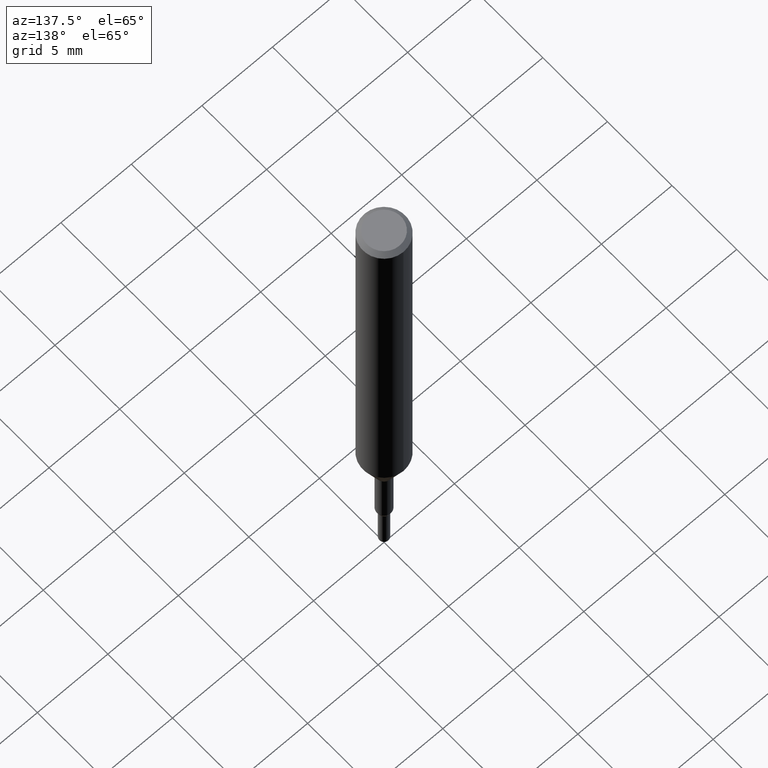
[diagram: clean part render]
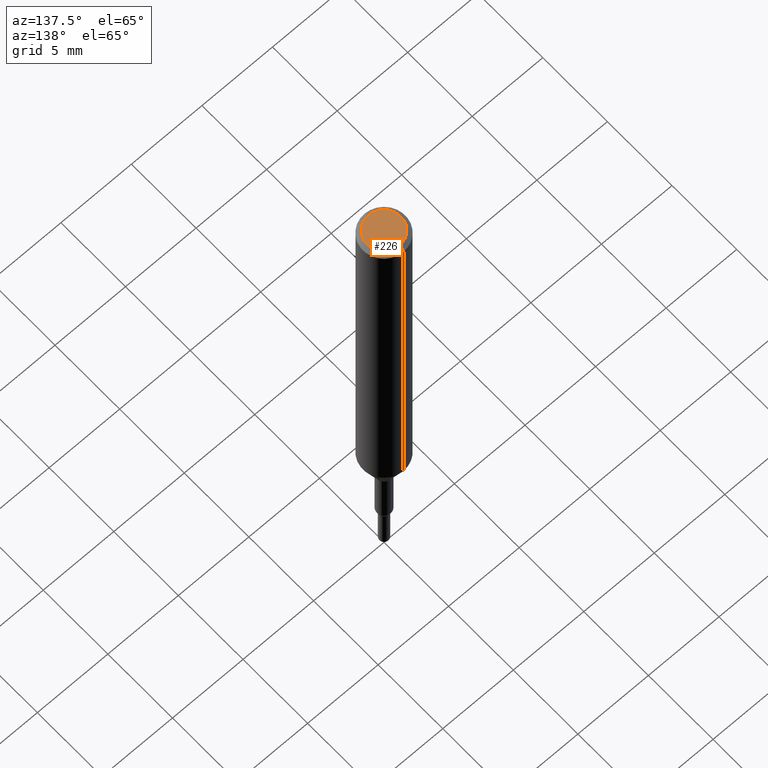
[diagram: same view with one face highlighted and labeled with its STEP entity id]
A machine part, auxiliary view. The second image highlights one B-rep face of the part: STEP entity #226.
In plain terms, the highlighted planar face has unit normal (-0, 0, 1).
Its self-contained STEP definition (entity closure, byte-faithful):
#122=VERTEX_POINT('',#300);
#150=VERTEX_POINT('',#331);
#152=EDGE_CURVE('',#122,#150,#333,.T.);
#186=EDGE_CURVE('',#150,#122,#371,.T.);
#226=ADVANCED_FACE('',(#417),#418,.T.);
#300=CARTESIAN_POINT('',(1.46952762458685E-016,-1.2,0.0));
#331=CARTESIAN_POINT('',(0.0,1.2,0.0));
#333=CIRCLE('',#536,1.2);
#371=CIRCLE('',#588,1.2);
#417=FACE_OUTER_BOUND('',#646,.T.);
#418=PLANE('',#647);
#536=AXIS2_PLACEMENT_3D('',#752,#753,#754);
#588=AXIS2_PLACEMENT_3D('',#811,#812,#813);
#646=EDGE_LOOP('',(#875,#876));
#647=AXIS2_PLACEMENT_3D('',#877,#878,#879);
#752=CARTESIAN_POINT('',(0.0,0.0,0.0));
#753=DIRECTION('',(0.0,0.0,-1.0));
#754=DIRECTION('',(0.0,1.0,0.0));
#811=CARTESIAN_POINT('',(0.0,0.0,0.0));
#812=DIRECTION('',(0.0,0.0,-1.0));
#813=DIRECTION('',(0.0,1.0,0.0));
#875=ORIENTED_EDGE('',*,*,#186,.F.);
#876=ORIENTED_EDGE('',*,*,#152,.F.);
#877=CARTESIAN_POINT('',(0.0,0.6,0.0));
#878=DIRECTION('',(-0.0,0.0,1.0));
#879=DIRECTION('',(0.0,-1.0,0.0));